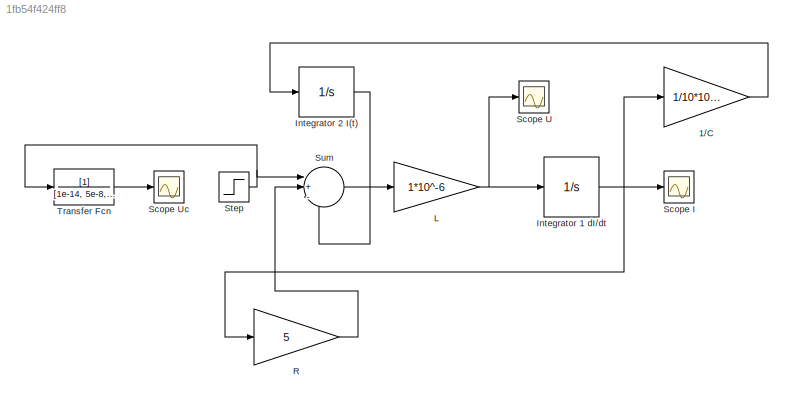
MODEL slx_1fb54f424ff8
KIND model
CONFIG AbsTol = auto
CONFIG EnableMultiTasking = off
CONFIG FixedStep = auto
CONFIG MaxStep = auto
CONFIG MinStep = auto
CONFIG RelTol = 1e-3
CONFIG SampleTimeConstraint = Unconstrained
CONFIG SolverName = ode45
CONFIG StartTime = 0.0
CONFIG StopTime = 5e-6
BLOCK [Gain] 1//C
  Gain = 1/10*10^-9
BLOCK [Integrator] Integrator 1 dI//dt
BLOCK [Integrator] Integrator 2 I(t)
BLOCK [Gain] L
  Gain = 1*10^-6
BLOCK [Gain] R
  Gain = 5
BLOCK [Scope] Scope I
  Floating = off
  NumInputPorts = 1
  ScopeSpecificationString = Simulink.scopes.TimeScopeBlockCfg('CurrentConfiguration', extmgr.ConfigurationSet(extmgr.Configuration('Core','General UI',true),extmgr.Configuration('Core','Source UI',true),extmgr.Configuration('Sources','WiredSimulink',true,'DataLoggingVariableName','ScopeData1'),extmgr.Configuration('Visuals','Time Domain',true,'SerializedDisplays',{struct('MinYLimReal','-0.0000000000006','MaxYLimReal','0.0000...<+1441ch>
BLOCK [Scope] Scope U
  Floating = off
  NumInputPorts = 1
  ScopeSpecificationString = Simulink.scopes.TimeScopeBlockCfg('CurrentConfiguration', extmgr.ConfigurationSet(extmgr.Configuration('Core','General UI',true),extmgr.Configuration('Core','Source UI',true),extmgr.Configuration('Sources','WiredSimulink',true),extmgr.Configuration('Visuals','Time Domain',true,'SerializedDisplays',{struct('MinYLimReal','0.000000999999999972','MaxYLimReal','0.000001000000000003','YLabelReal','','Mi...<+1449ch>
BLOCK [Scope] Scope Uc
  Floating = off
  NumInputPorts = 1
  ScopeSpecificationString = Simulink.scopes.TimeScopeBlockCfg('CurrentConfiguration', extmgr.ConfigurationSet(extmgr.Configuration('Core','General UI',true),extmgr.Configuration('Core','Source UI',true),extmgr.Configuration('Sources','WiredSimulink',true,'DataLoggingVariableName','ScopeData2'),extmgr.Configuration('Visuals','Time Domain',true,'SerializedDisplays',{struct('MinYLimReal','-0.17874','MaxYLimReal','1.60863','YLab...<+1371ch>
BLOCK [Step] Step
  SampleTime = 0
  Time = 0
BLOCK [Sum] Sum
  Inputs = |+--
BLOCK [TransferFcn] Transfer Fcn
  Denominator = [1e-14, 5e-8, 1]
LINE 1//C:1 -> Integrator 2 I(t):1
NET Integrator 1 dI//dt:1 -> 1//C:1, R:1, Scope I:1
LINE Integrator 2 I(t):1 -> Sum:3
NET L:1 -> Integrator 1 dI//dt:1, Scope U:1
LINE R:1 -> Sum:2
NET Step:1 -> Sum:1, Transfer Fcn:1
LINE Sum:1 -> L:1
LINE Transfer Fcn:1 -> Scope Uc:1
note: NET lines group one-source signal fan-out (src -> all destinations, sorted); 1:1 wires keep LINE
